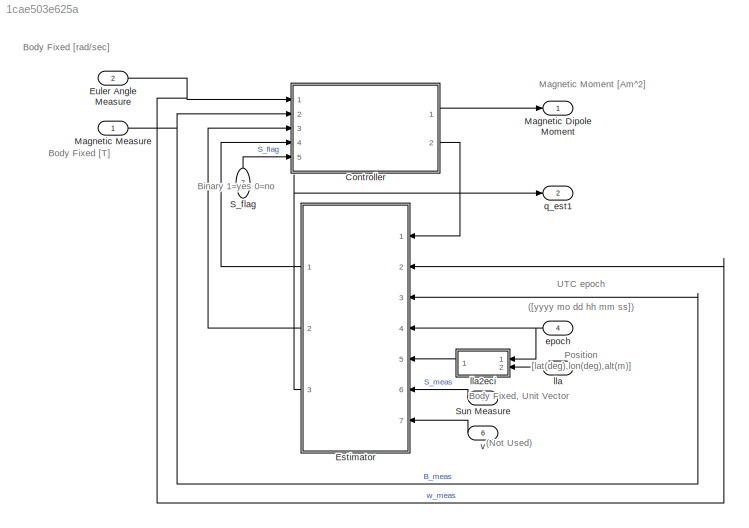
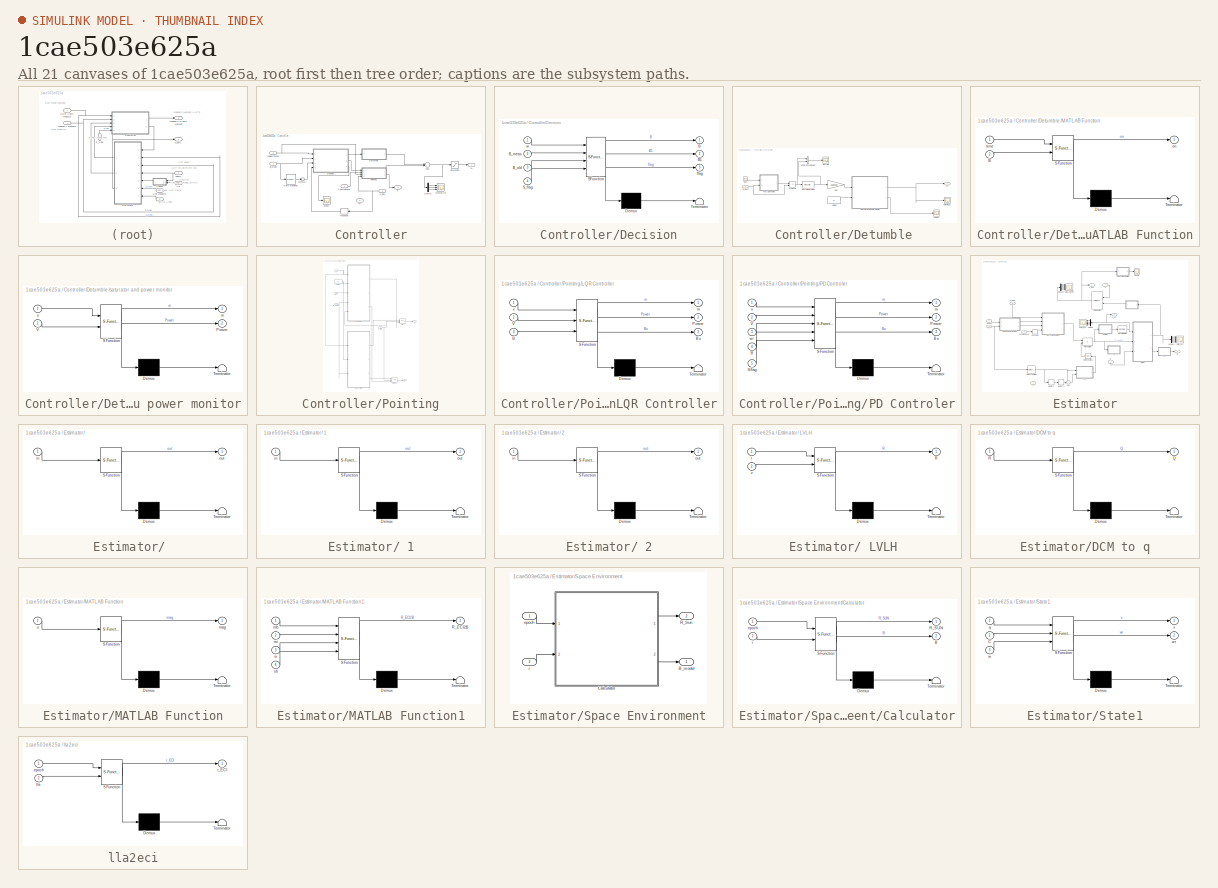
[diagram: thumbnail index - all 21 canvases of the model, root first then tree order]
MODEL slx_1cae503e625a
KIND model
CONFIG AbsTol = auto
CONFIG FixedStep = dt
CONFIG InitFcn = sat_model_init\n
CONFIG MaxStep = auto
CONFIG MinStep = auto
CONFIG RelTol = 1e-6
CONFIG SampleTimeConstraint = Unconstrained
CONFIG Solver = ode4
CONFIG SolverMode = Auto
CONFIG SolverName = ode4
CONFIG StartTime = t0
CONFIG StopTime = tf
BLOCK [SubSystem] Controller
  Ports = [5, 2]
  RequestExecContextInheritance = off
  Variant = off
BLOCK [Inport] Controller/AngleRatesB
  IconDisplay = Port number
BLOCK [Inport] Controller/B_meas
  IconDisplay = Port number
  Port = 2
BLOCK [Inport] Controller/ControlState
  IconDisplay = Port number
  Port = 4
BLOCK [SubSystem] Controller/Decision
  ErrorFcn = Stateflow.Translate.translate
  PermitHierarchicalResolution = ExplicitOnly
  Ports = [4, 3]
  RequestExecContextInheritance = off
  SFBlockType = MATLAB Function
  TreatAsAtomicUnit = on
  Variant = off
BLOCK [Demux] Controller/Decision/ Demux 
  Outputs = 1
  Ports = [1, 1]
BLOCK [S-Function] Controller/Decision/ SFunction 
  EnableBusSupport = on
  FunctionName = sf_sfun
  PortCounts = [4 4]
  Ports = [4, 4]
  SFunctionDeploymentMode = off
  Tag = Stateflow S-Function ADC 7
BLOCK [Terminator] Controller/Decision/ Terminator 
BLOCK [Outport] Controller/Decision/B
  IconDisplay = Port number
BLOCK [Outport] Controller/Decision/B1
  IconDisplay = Port number
  Port = 2
BLOCK [Inport] Controller/Decision/B_meas
  IconDisplay = Port number
  Port = 2
BLOCK [Inport] Controller/Decision/B_old
  IconDisplay = Port number
  Port = 3
BLOCK [Inport] Controller/Decision/S_flag
  IconDisplay = Port number
  Port = 4
BLOCK [Outport] Controller/Decision/flag
  IconDisplay = Port number
  Port = 3
BLOCK [Inport] Controller/Decision/w
  IconDisplay = Port number
BLOCK [Demux] Controller/Demux
  DisplayOption = bar
  Outputs = 3
  Ports = [1, 3]
BLOCK [SubSystem] Controller/Detumble 
  Ports = [1, 1]
  RequestExecContextInheritance = off
  Variant = off
BLOCK [Inport] Controller/Detumble /B_meas 
  IconDisplay = Port number
BLOCK [Clock] Controller/Detumble /Clock
BLOCK [Scope] Controller/Detumble /Discrete 
  Ports = [1]
  ScopeSpecificationString = C++SS(StrPVP('Location','[8, 60, 1916, 1046]'),StrPVP('Open','off'),StrPVP('ZoomMode','xonly'),MxPVP('AxesTitles',24,'struct(''axes1'',''%<SignalLabel>'')'),MxPVP('ScopeGraphics',28,'struct(''FigureColor'',''[0.156862745098039 0.156862745098039 0.156862745098039]'',''AxesColor'',''[0 0 0]'',''AxesTickColor'',''[0.686274509803922 0.686274509803922 0.686274509803922]'',''LineColors'',''[1 1 0;1 0 1;...<+472ch>
BLOCK [Reference] Controller/Detumble /Discrete Derivative  REF=simulink/Discrete/Discrete Derivative
  Ports = [1, 1]
  SourceBlock = simulink/Discrete/Discrete Derivative
  SourceType = Discrete Derivative
BLOCK [Gain] Controller/Detumble /Gain
  Gain = -1000000
  OutDataTypeStr = Inherit: Inherit via internal rule
  ParamDataTypeStr = Inherit: Inherit via internal rule
  SaturateOnIntegerOverflow = off
BLOCK [SubSystem] Controller/Detumble /MATLAB Function
  ErrorFcn = Stateflow.Translate.translate
  PermitHierarchicalResolution = ExplicitOnly
  Ports = [2, 1]
  RequestExecContextInheritance = off
  SFBlockType = MATLAB Function
  TreatAsAtomicUnit = on
  Variant = off
BLOCK [Demux] Controller/Detumble /MATLAB Function/ Demux 
  Outputs = 1
  Ports = [1, 1]
BLOCK [S-Function] Controller/Detumble /MATLAB Function/ SFunction 
  EnableBusSupport = on
  FunctionName = sf_sfun
  PortCounts = [2 2]
  Ports = [2, 2]
  SFunctionDeploymentMode = off
  Tag = Stateflow S-Function ADC 16
BLOCK [Terminator] Controller/Detumble /MATLAB Function/ Terminator 
BLOCK [Inport] Controller/Detumble /MATLAB Function/B
  IconDisplay = Port number
  Port = 2
BLOCK [Outport] Controller/Detumble /MATLAB Function/on
  IconDisplay = Port number
BLOCK [Inport] Controller/Detumble /MATLAB Function/time
  IconDisplay = Port number
BLOCK [Scope] Controller/Detumble /Output M_B
  Ports = [1]
  ScopeSpecificationString = C++SS(StrPVP('Location','[5, 48, 1921, 1039]'),StrPVP('Open','off'),StrPVP('ZoomMode','xonly'),MxPVP('AxesTitles',24,'struct(''axes1'',''%<SignalLabel>'')'),MxPVP('ScopeGraphics',28,'struct(''FigureColor'',''[0.156862745098039 0.156862745098039 0.156862745098039]'',''AxesColor'',''[0 0 0]'',''AxesTickColor'',''[0.686274509803922 0.686274509803922 0.686274509803922]'',''LineColors'',''[1 1 0;1 0 1;...<+371ch>
BLOCK [Scope] Controller/Detumble /Power
  Ports = [1]
  ScopeSpecificationString = C++SS(StrPVP('Location','[5, 48, 1925, 1039]'),StrPVP('Open','off'),StrPVP('ZoomMode','xonly'),MxPVP('AxesTitles',24,'struct(''axes1'',''%<SignalLabel>'')'),MxPVP('ScopeGraphics',28,'struct(''FigureColor'',''[0.156862745098039 0.156862745098039 0.156862745098039]'',''AxesColor'',''[0 0 0]'',''AxesTickColor'',''[0.686274509803922 0.686274509803922 0.686274509803922]'',''LineColors'',''[1 1 0;1 0 1;...<+438ch>
BLOCK [Product] Controller/Detumble /Product4
  InputSameDT = off
  OutDataTypeStr = Inherit: Inherit via internal rule
  Ports = [2, 1]
  RndMeth = Floor
  SaturateOnIntegerOverflow = off
BLOCK [Concatenate] Controller/Detumble /Vector Concatenate
  Ports = [2, 1]
BLOCK [Outport] Controller/Detumble /m
  IconDisplay = Port number
BLOCK [SubSystem] Controller/Detumble /saturator and power monitor
  ErrorFcn = Stateflow.Translate.translate
  PermitHierarchicalResolution = ExplicitOnly
  Ports = [2, 2]
  RequestExecContextInheritance = off
  SFBlockType = MATLAB Function
  TreatAsAtomicUnit = on
  Variant = off
BLOCK [Demux] Controller/Detumble /saturator and power monitor/ Demux 
  Outputs = 1
  Ports = [1, 1]
BLOCK [S-Function] Controller/Detumble /saturator and power monitor/ SFunction 
  EnableBusSupport = on
  FunctionName = sf_sfun
  PortCounts = [2 3]
  Ports = [2, 3]
  SFunctionDeploymentMode = off
  Tag = Stateflow S-Function ADC 12
BLOCK [Terminator] Controller/Detumble /saturator and power monitor/ Terminator 
BLOCK [Outport] Controller/Detumble /saturator and power monitor/Power
  IconDisplay = Port number
  Port = 2
BLOCK [Inport] Controller/Detumble /saturator and power monitor/V
  IconDisplay = Port number
  Port = 2
BLOCK [Outport] Controller/Detumble /saturator and power monitor/m
  IconDisplay = Port number
BLOCK [Inport] Controller/Detumble /saturator and power monitor/u
  IconDisplay = Port number
BLOCK [Constant] Controller/Detumble /voltage
  Value = 5
BLOCK [Outport] Controller/M
  IconDisplay = Port number
BLOCK [Memory] Controller/Memory
  InheritSampleTime = on
BLOCK [Scope] Controller/MometOut
  NumInputPorts = 3
  Ports = [3]
  ScopeSpecificationString = C++SS(StrPVP('Location','[38, 83, 1431, 870]'),StrPVP('Open','off'),MxPVP('AxesTitles',24,'struct(''axes1'',''%<SignalLabel>'',''axes2'',''%<SignalLabel>'',''axes3'',''%<SignalLabel>'')'),MxPVP('ScopeGraphics',28,'struct(''FigureColor'',''[0.156862745098039 0.156862745098039 0.156862745098039]'',''AxesColor'',''[0 0 0]'',''AxesTickColor'',''[0.686274509803922 0.686274509803922 0.686274509803922]''...<+420ch>
BLOCK [SubSystem] Controller/Pointing
  Ports = [4, 2]
  RequestExecContextInheritance = off
  Variant = off
BLOCK [Inport] Controller/Pointing/B_meas
  IconDisplay = Port number
BLOCK [SubSystem] Controller/Pointing/LQR Controller
  ErrorFcn = Stateflow.Translate.translate
  PermitHierarchicalResolution = ExplicitOnly
  Ports = [3, 3]
  RequestExecContextInheritance = off
  SFBlockType = MATLAB Function
  TreatAsAtomicUnit = on
  Variant = off
BLOCK [Demux] Controller/Pointing/LQR Controller/ Demux 
  Outputs = 1
  Ports = [1, 1]
BLOCK [S-Function] Controller/Pointing/LQR Controller/ SFunction 
  EnableBusSupport = on
  FunctionName = sf_sfun
  PortCounts = [3 4]
  Ports = [3, 4]
  SFunctionDeploymentMode = off
  Tag = Stateflow S-Function ADC 13
BLOCK [Terminator] Controller/Pointing/LQR Controller/ Terminator 
BLOCK [Inport] Controller/Pointing/LQR Controller/B
  IconDisplay = Port number
  Port = 3
BLOCK [Outport] Controller/Pointing/LQR Controller/Bu
  IconDisplay = Port number
  Port = 3
BLOCK [Outport] Controller/Pointing/LQR Controller/Power
  IconDisplay = Port number
  Port = 2
BLOCK [Inport] Controller/Pointing/LQR Controller/V
  IconDisplay = Port number
  Port = 2
BLOCK [Outport] Controller/Pointing/LQR Controller/m
  IconDisplay = Port number
BLOCK [Inport] Controller/Pointing/LQR Controller/x
  IconDisplay = Port number
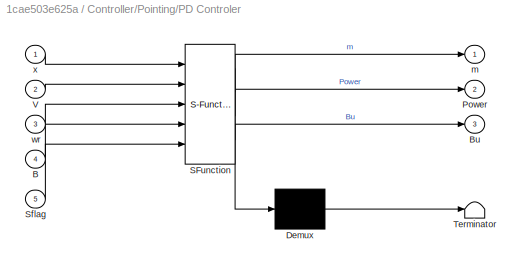
BLOCK [SubSystem] Controller/Pointing/PD Controler
  ErrorFcn = Stateflow.Translate.translate
  PermitHierarchicalResolution = ExplicitOnly
  Ports = [5, 3]
  RequestExecContextInheritance = off
  SFBlockType = MATLAB Function
  TreatAsAtomicUnit = on
  Variant = off
BLOCK [Demux] Controller/Pointing/PD Controler/ Demux 
  Outputs = 1
  Ports = [1, 1]
BLOCK [S-Function] Controller/Pointing/PD Controler/ SFunction 
  EnableBusSupport = on
  FunctionName = sf_sfun
  PortCounts = [5 4]
  Ports = [5, 4]
  SFunctionDeploymentMode = off
  Tag = Stateflow S-Function ADC 22
BLOCK [Terminator] Controller/Pointing/PD Controler/ Terminator 
BLOCK [Inport] Controller/Pointing/PD Controler/B
  IconDisplay = Port number
  Port = 4
BLOCK [Outport] Controller/Pointing/PD Controler/Bu
  IconDisplay = Port number
  Port = 3
BLOCK [Outport] Controller/Pointing/PD Controler/Power
  IconDisplay = Port number
  Port = 2
BLOCK [Inport] Controller/Pointing/PD Controler/Sflag
  IconDisplay = Port number
  Port = 5
BLOCK [Inport] Controller/Pointing/PD Controler/V
  IconDisplay = Port number
  Port = 2
BLOCK [Outport] Controller/Pointing/PD Controler/m
  IconDisplay = Port number
BLOCK [Inport] Controller/Pointing/PD Controler/wr
  IconDisplay = Port number
  Port = 3
BLOCK [Inport] Controller/Pointing/PD Controler/x
  IconDisplay = Port number
BLOCK [Inport] Controller/Pointing/S_flag
  IconDisplay = Port number
  Port = 4
BLOCK [Switch] Controller/Pointing/Switch
  Criteria = u2 > Threshold
  InputSameDT = off
  SaturateOnIntegerOverflow = off
BLOCK [Switch] Controller/Pointing/Switch2
  Criteria = u2 > Threshold
  InputSameDT = off
  SaturateOnIntegerOverflow = off
BLOCK [Outport] Controller/Pointing/m
  IconDisplay = Port number
BLOCK [Outport] Controller/Pointing/u
  IconDisplay = Port number
  Port = 2
BLOCK [Constant] Controller/Pointing/voltage
  Value = 5
BLOCK [Inport] Controller/Pointing/wr
  IconDisplay = Port number
  Port = 3
BLOCK [Inport] Controller/Pointing/x
  IconDisplay = Port number
  Port = 2
BLOCK [RateTransition] Controller/Rate Transition
  OutPortSampleTime = .1
  OutPortSampleTimeOpt = Inherit
BLOCK [Reshape] Controller/Reshape
  OutputDimensionality = Customize
  Ports = [1, 1]
BLOCK [Inport] Controller/S_flag
  IconDisplay = Port number
  Port = 5
BLOCK [Saturate] Controller/Saturation
  Commented = through
  InputPortMap = u0
  LowerLimit = -1
  Ports = [1, 1]
  UpperLimit = 1
BLOCK [Scope] Controller/Scope
  Ports = [1]
  ScopeSpecificationString = C++SS(StrPVP('Location','[599, 395, 1433, 890]'),StrPVP('Open','off'),MxPVP('AxesTitles',24,'struct(''axes1'',''%<SignalLabel>'')'),MxPVP('ScopeGraphics',28,'struct(''FigureColor'',''[0.156862745098039 0.156862745098039 0.156862745098039]'',''AxesColor'',''[0 0 0]'',''AxesTickColor'',''[0.686274509803922 0.686274509803922 0.686274509803922]'',''LineColors'',''[1 1 0;1 0 1;0 1 1;1 0 0;0 1 0;0 0 1]'...<+332ch>
BLOCK [Sum] Controller/Sum
  IconShape = round
  InputSameDT = off
  Inputs = |++
  OutDataTypeStr = Inherit: Inherit via internal rule
  Ports = [2, 1]
  SaturateOnIntegerOverflow = off
BLOCK [Outport] Controller/u
  IconDisplay = Port number
  Port = 2
BLOCK [Inport] Controller/wr
  IconDisplay = Port number
  Port = 3
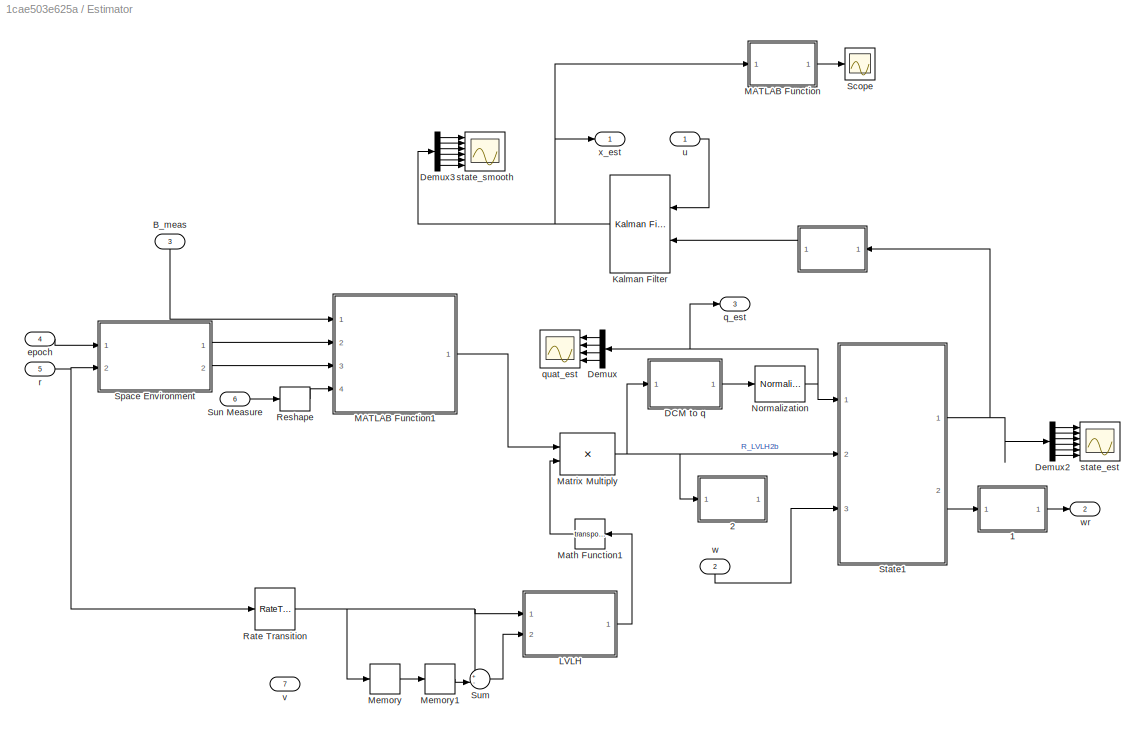
BLOCK [SubSystem] Estimator
  Ports = [7, 3]
  RequestExecContextInheritance = off
  Variant = off
BLOCK [SubSystem] Estimator/ 
  ErrorFcn = Stateflow.Translate.translate
  PermitHierarchicalResolution = ExplicitOnly
  Ports = [1, 1]
  RequestExecContextInheritance = off
  SFBlockType = MATLAB Function
  TreatAsAtomicUnit = on
  Variant = off
BLOCK [Demux] Estimator/ / Demux 
  Outputs = 1
  Ports = [1, 1]
BLOCK [S-Function] Estimator/ / SFunction 
  EnableBusSupport = on
  FunctionName = sf_sfun
  PortCounts = [1 2]
  Ports = [1, 2]
  SFunctionDeploymentMode = off
  Tag = Stateflow S-Function ADC 31
BLOCK [Terminator] Estimator/ / Terminator 
BLOCK [Inport] Estimator/ /in
  IconDisplay = Port number
BLOCK [Outport] Estimator/ /out
  IconDisplay = Port number
BLOCK [SubSystem] Estimator/ 1
  ErrorFcn = Stateflow.Translate.translate
  PermitHierarchicalResolution = ExplicitOnly
  Ports = [1, 1]
  RequestExecContextInheritance = off
  SFBlockType = MATLAB Function
  TreatAsAtomicUnit = on
  Variant = off
BLOCK [Demux] Estimator/ 1/ Demux 
  Outputs = 1
  Ports = [1, 1]
BLOCK [S-Function] Estimator/ 1/ SFunction 
  EnableBusSupport = on
  FunctionName = sf_sfun
  PortCounts = [1 2]
  Ports = [1, 2]
  SFunctionDeploymentMode = off
  Tag = Stateflow S-Function ADC 34
BLOCK [Terminator] Estimator/ 1/ Terminator 
BLOCK [Inport] Estimator/ 1/in
  IconDisplay = Port number
BLOCK [Outport] Estimator/ 1/out
  IconDisplay = Port number
BLOCK [SubSystem] Estimator/ 2
  ErrorFcn = Stateflow.Translate.translate
  PermitHierarchicalResolution = ExplicitOnly
  Ports = [1, 1]
  RequestExecContextInheritance = off
  SFBlockType = MATLAB Function
  TreatAsAtomicUnit = on
  Variant = off
BLOCK [Demux] Estimator/ 2/ Demux 
  Outputs = 1
  Ports = [1, 1]
BLOCK [S-Function] Estimator/ 2/ SFunction 
  EnableBusSupport = on
  FunctionName = sf_sfun
  PortCounts = [1 2]
  Ports = [1, 2]
  SFunctionDeploymentMode = off
  Tag = Stateflow S-Function ADC 36
BLOCK [Terminator] Estimator/ 2/ Terminator 
BLOCK [Inport] Estimator/ 2/in
  IconDisplay = Port number
BLOCK [Outport] Estimator/ 2/out
  IconDisplay = Port number
BLOCK [SubSystem] Estimator/ LVLH 
  ErrorFcn = Stateflow.Translate.translate
  PermitHierarchicalResolution = ExplicitOnly
  Ports = [2, 1]
  RequestExecContextInheritance = off
  SFBlockType = MATLAB Function
  TreatAsAtomicUnit = on
  Variant = off
BLOCK [Demux] Estimator/ LVLH / Demux 
  Outputs = 1
  Ports = [1, 1]
BLOCK [S-Function] Estimator/ LVLH / SFunction 
  EnableBusSupport = on
  FunctionName = sf_sfun
  PortCounts = [2 2]
  Ports = [2, 2]
  SFunctionDeploymentMode = off
  Tag = Stateflow S-Function ADC 24
BLOCK [Terminator] Estimator/ LVLH / Terminator 
BLOCK [Outport] Estimator/ LVLH /R
  IconDisplay = Port number
BLOCK [Inport] Estimator/ LVLH /r
  IconDisplay = Port number
BLOCK [Inport] Estimator/ LVLH /v
  IconDisplay = Port number
  Port = 2
BLOCK [Inport] Estimator/B_meas
  IconDisplay = Port number
  Port = 3
BLOCK [SubSystem] Estimator/DCM to q
  ErrorFcn = Stateflow.Translate.translate
  PermitHierarchicalResolution = ExplicitOnly
  Ports = [1, 1]
  RequestExecContextInheritance = off
  SFBlockType = MATLAB Function
  TreatAsAtomicUnit = on
  Variant = off
BLOCK [Demux] Estimator/DCM to q/ Demux 
  Outputs = 1
  Ports = [1, 1]
BLOCK [S-Function] Estimator/DCM to q/ SFunction 
  EnableBusSupport = on
  FunctionName = sf_sfun
  PortCounts = [1 2]
  Ports = [1, 2]
  SFunctionDeploymentMode = off
  Tag = Stateflow S-Function ADC 18
BLOCK [Terminator] Estimator/DCM to q/ Terminator 
BLOCK [Outport] Estimator/DCM to q/Q
  IconDisplay = Port number
BLOCK [Inport] Estimator/DCM to q/R
  IconDisplay = Port number
BLOCK [Demux] Estimator/Demux
  DisplayOption = bar
  Ports = [1, 4]
BLOCK [Demux] Estimator/Demux2
  DisplayOption = bar
  Outputs = 6
  Ports = [1, 6]
BLOCK [Demux] Estimator/Demux3
  DisplayOption = bar
  Outputs = 6
  Ports = [1, 6]
BLOCK [Reference] Estimator/Kalman Filter  REF=ctrlSharedLib/Kalman Filter
  Ports = [2, 1]
  SourceBlock = ctrlSharedLib/Kalman Filter
  SourceType = ctrlKalmanFilter
BLOCK [SubSystem] Estimator/MATLAB Function
  ErrorFcn = Stateflow.Translate.translate
  PermitHierarchicalResolution = ExplicitOnly
  Ports = [1, 1]
  RequestExecContextInheritance = off
  SFBlockType = MATLAB Function
  TreatAsAtomicUnit = on
  Variant = off
BLOCK [Demux] Estimator/MATLAB Function/ Demux 
  Outputs = 1
  Ports = [1, 1]
BLOCK [S-Function] Estimator/MATLAB Function/ SFunction 
  EnableBusSupport = on
  FunctionName = sf_sfun
  PortCounts = [1 2]
  Ports = [1, 2]
  SFunctionDeploymentMode = off
  Tag = Stateflow S-Function ADC 29
BLOCK [Terminator] Estimator/MATLAB Function/ Terminator 
BLOCK [Outport] Estimator/MATLAB Function/mag
  IconDisplay = Port number
BLOCK [Inport] Estimator/MATLAB Function/u
  IconDisplay = Port number
BLOCK [SubSystem] Estimator/MATLAB Function1
  ErrorFcn = Stateflow.Translate.translate
  PermitHierarchicalResolution = ExplicitOnly
  Ports = [4, 1]
  RequestExecContextInheritance = off
  SFBlockType = MATLAB Function
  TreatAsAtomicUnit = on
  Variant = off
BLOCK [Demux] Estimator/MATLAB Function1/ Demux 
  Outputs = 1
  Ports = [1, 1]
BLOCK [S-Function] Estimator/MATLAB Function1/ SFunction 
  EnableBusSupport = on
  FunctionName = sf_sfun
  PortCounts = [4 2]
  Ports = [4, 2]
  SFunctionDeploymentMode = off
  Tag = Stateflow S-Function ADC 30
BLOCK [Terminator] Estimator/MATLAB Function1/ Terminator 
BLOCK [Outport] Estimator/MATLAB Function1/R_ECI2B
  IconDisplay = Port number
BLOCK [Inport] Estimator/MATLAB Function1/mb
  IconDisplay = Port number
BLOCK [Inport] Estimator/MATLAB Function1/mi
  IconDisplay = Port number
  Port = 2
BLOCK [Inport] Estimator/MATLAB Function1/sb
  IconDisplay = Port number
  Port = 4
BLOCK [Inport] Estimator/MATLAB Function1/si
  IconDisplay = Port number
  Port = 3
BLOCK [Math] Estimator/Math Function1
  Operator = transpose
  Ports = [1, 1]
BLOCK [Product] Estimator/Matrix Multiply
  InputSameDT = off
  Multiplication = Matrix(*)
  OutDataTypeStr = Inherit: Inherit via internal rule
  Ports = [2, 1]
  RndMeth = Floor
  SaturateOnIntegerOverflow = off
BLOCK [Memory] Estimator/Memory
BLOCK [Memory] Estimator/Memory1
BLOCK [Reference] Estimator/Normalization  REF=dspmathops/Normalization
  Ports = [1, 1]
  SourceBlock = dspmathops/Normalization
  SourceType = Normalization
BLOCK [RateTransition] Estimator/Rate Transition
  OutPortSampleTime = 1
  OutPortSampleTimeOpt = Inherit
BLOCK [Reshape] Estimator/Reshape
  OutputDimensionality = Customize
  OutputDimensions = [3,1]
  Ports = [1, 1]
BLOCK [Scope] Estimator/Scope
  Ports = [1]
  ScopeSpecificationString = C++SS(StrPVP('Location','[403, 305, 1377, 1133]'),StrPVP('Open','off'),MxPVP('AxesTitles',24,'struct(''axes1'',''%<SignalLabel>'')'),MxPVP('ScopeGraphics',28,'struct(''FigureColor'',''[0.156862745098039 0.156862745098039 0.156862745098039]'',''AxesColor'',''[0 0 0]'',''AxesTickColor'',''[0.686274509803922 0.686274509803922 0.686274509803922]'',''LineColors'',''[1 1 0;1 0 1;0 1 1;1 0 0;0 1 0;0 0 1]...<+339ch>
BLOCK [SubSystem] Estimator/Space Environment
  Ports = [2, 2]
  RequestExecContextInheritance = off
  Variant = off
BLOCK [Outport] Estimator/Space Environment/B_model
  IconDisplay = Port number
BLOCK [SubSystem] Estimator/Space Environment/Calculator
  ErrorFcn = Stateflow.Translate.translate
  PermitHierarchicalResolution = ExplicitOnly
  Ports = [2, 2]
  RequestExecContextInheritance = off
  SFBlockType = MATLAB Function
  TreatAsAtomicUnit = on
  Variant = off
BLOCK [Demux] Estimator/Space Environment/Calculator/ Demux 
  Outputs = 1
  Ports = [1, 1]
BLOCK [S-Function] Estimator/Space Environment/Calculator/ SFunction 
  EnableBusSupport = on
  FunctionName = sf_sfun
  PortCounts = [2 3]
  Ports = [2, 3]
  SFunctionDeploymentMode = off
  Tag = Stateflow S-Function ADC 15
BLOCK [Terminator] Estimator/Space Environment/Calculator/ Terminator 
BLOCK [Outport] Estimator/Space Environment/Calculator/B
  IconDisplay = Port number
  Port = 2
BLOCK [Outport] Estimator/Space Environment/Calculator/R_SUN
  IconDisplay = Port number
BLOCK [Inport] Estimator/Space Environment/Calculator/epoch
  IconDisplay = Port number
BLOCK [Inport] Estimator/Space Environment/Calculator/r
  IconDisplay = Port number
  Port = 2
BLOCK [Outport] Estimator/Space Environment/R_Sun
  IconDisplay = Port number
  Port = 2
BLOCK [Inport] Estimator/Space Environment/epoch
  IconDisplay = Port number
BLOCK [Inport] Estimator/Space Environment/r
  IconDisplay = Port number
  Port = 2
BLOCK [SubSystem] Estimator/State1
  ErrorFcn = Stateflow.Translate.translate
  PermitHierarchicalResolution = ExplicitOnly
  Ports = [3, 2]
  RequestExecContextInheritance = off
  SFBlockType = MATLAB Function
  TreatAsAtomicUnit = on
  Variant = off
BLOCK [Demux] Estimator/State1/ Demux 
  Outputs = 1
  Ports = [1, 1]
BLOCK [S-Function] Estimator/State1/ SFunction 
  EnableBusSupport = on
  FunctionName = sf_sfun
  PortCounts = [3 3]
  Ports = [3, 3]
  SFunctionDeploymentMode = off
  Tag = Stateflow S-Function ADC 23
BLOCK [Terminator] Estimator/State1/ Terminator 
BLOCK [Inport] Estimator/State1/C
  IconDisplay = Port number
  Port = 2
BLOCK [Inport] Estimator/State1/q
  IconDisplay = Port number
BLOCK [Inport] Estimator/State1/w
  IconDisplay = Port number
  Port = 3
BLOCK [Outport] Estimator/State1/wr
  IconDisplay = Port number
  Port = 2
BLOCK [Outport] Estimator/State1/x
  IconDisplay = Port number
BLOCK [Sum] Estimator/Sum
  IconShape = round
  InputSameDT = off
  Inputs = +-|
  OutDataTypeStr = Inherit: Inherit via internal rule
  Ports = [2, 1]
  SaturateOnIntegerOverflow = off
BLOCK [Inport] Estimator/Sun Measure
  IconDisplay = Port number
  Port = 6
BLOCK [Inport] Estimator/epoch
  IconDisplay = Port number
  Port = 4
BLOCK [Outport] Estimator/q_est
  IconDisplay = Port number
  Port = 3
BLOCK [Scope] Estimator/quat_est
  NumInputPorts = 4
  Ports = [4]
  ScopeSpecificationString = Simulink.scopes.TimeScopeBlockCfg('CurrentConfiguration', extmgr.ConfigurationSet(extmgr.Configuration('Core','General UI',true,'FigureColor',[0.156862745098039 0.156862745098039 0.156862745098039]),extmgr.Configuration('Core','Source UI',true),extmgr.Configuration('Sources','WiredSimulink',true,'DataLogging',true,'DataLoggingVariableName','quat_est','DataLoggingSaveFormat','Structure','DataLoggin...<+6442ch>
BLOCK [Inport] Estimator/r
  IconDisplay = Port number
  Port = 5
  SamplingMode = Sample based
BLOCK [Scope] Estimator/state_est
  NumInputPorts = 6
  Ports = [6]
  ScopeSpecificationString = C++SS(StrPVP('Location','[741, 53, 1717, 1173]'),StrPVP('Open','off'),MxPVP('AxesTitles',24,'struct(''axes1'',''%<SignalLabel>'',''axes2'',''%<SignalLabel>'',''axes3'',''%<SignalLabel>'',''axes4'',''%<SignalLabel>'',''axes5'',''%<SignalLabel>'',''axes6'',''%<SignalLabel>'')'),MxPVP('ScopeGraphics',28,'struct(''FigureColor'',''[0.156862745098039 0.156862745098039 0.156862745098039]'',''AxesColor'',...<+635ch>
BLOCK [Scope] Estimator/state_smooth
  NumInputPorts = 6
  Ports = [6]
  ScopeSpecificationString = C++SS(StrPVP('Location','[17, 69, 1009, 1095]'),StrPVP('Open','off'),MxPVP('AxesTitles',24,'struct(''axes1'',''%<SignalLabel>'',''axes2'',''%<SignalLabel>'',''axes3'',''%<SignalLabel>'',''axes4'',''%<SignalLabel>'',''axes5'',''%<SignalLabel>'',''axes6'',''%<SignalLabel>'')'),MxPVP('ScopeGraphics',28,'struct(''FigureColor'',''[0.156862745098039 0.156862745098039 0.156862745098039]'',''AxesColor'','...<+576ch>
BLOCK [Inport] Estimator/u
  IconDisplay = Port number
BLOCK [Inport] Estimator/v 
  IconDisplay = Port number
  Port = 7
BLOCK [Inport] Estimator/w
  IconDisplay = Port number
  Port = 2
BLOCK [Outport] Estimator/wr
  IconDisplay = Port number
  Port = 2
BLOCK [Outport] Estimator/x_est
  IconDisplay = Port number
BLOCK [Inport] Euler Angle Measure
  IconDisplay = Port number
  OutDataTypeStr = double
  Port = 2
  PortDimensions = 3
  SampleTime = 0
  SamplingMode = Sample based
  SignalType = real
BLOCK [Outport] Magnetic Dipole Moment
  IconDisplay = Port number
  OutDataTypeStr = double
  PortDimensions = 3
  SampleTime = 0
  SamplingMode = Sample based
  SignalType = real
BLOCK [Inport] Magnetic Measure
  IconDisplay = Port number
  OutDataTypeStr = double
  PortDimensions = 3
  SamplingMode = Sample based
  SignalType = real
BLOCK [Inport] S_flag
  IconDisplay = Port number
  OutDataTypeStr = double
  Port = 7
  PortDimensions = 1
  SampleTime = 0
  SamplingMode = Sample based
  SignalType = real
BLOCK [Inport] Sun Measure
  IconDisplay = Port number
  OutDataTypeStr = double
  Port = 3
  PortDimensions = 3
  SampleTime = 0
  SamplingMode = Sample based
  SignalType = real
BLOCK [Inport] epoch
  IconDisplay = Port number
  OutDataTypeStr = double
  Port = 4
  PortDimensions = 6
  SamplingMode = Sample based
  SignalType = real
BLOCK [Inport] lla
  IconDisplay = Port number
  OutDataTypeStr = double
  Port = 5
  PortDimensions = 3
  SampleTime = 0
  SamplingMode = Sample based
  SignalType = real
BLOCK [SubSystem] lla2eci
  ErrorFcn = Stateflow.Translate.translate
  PermitHierarchicalResolution = ExplicitOnly
  Ports = [2, 1]
  RequestExecContextInheritance = off
  SFBlockType = MATLAB Function
  TreatAsAtomicUnit = on
  Variant = off
BLOCK [Demux] lla2eci/ Demux 
  Outputs = 1
  Ports = [1, 1]
BLOCK [S-Function] lla2eci/ SFunction 
  EnableBusSupport = on
  FunctionName = sf_sfun
  PortCounts = [2 2]
  Ports = [2, 2]
  SFunctionDeploymentMode = off
  Tag = Stateflow S-Function ADC 2
BLOCK [Terminator] lla2eci/ Terminator 
BLOCK [Inport] lla2eci/epoch
  IconDisplay = Port number
BLOCK [Inport] lla2eci/lla
  IconDisplay = Port number
  Port = 2
BLOCK [Outport] lla2eci/r_ECI
  IconDisplay = Port number
BLOCK [Outport] q_est1
  IconDisplay = Port number
  Port = 2
BLOCK [Inport] v 
  IconDisplay = Port number
  OutDataTypeStr = double
  Port = 6
  PortDimensions = 3
  SampleTime = 0
  SamplingMode = Sample based
  SignalType = real
ANNOTATION (root): (Not Used)
ANNOTATION (root): Body Fixed [T]
ANNOTATION (root): Body Fixed, Unit Vector
ANNOTATION (root): Position [lat(deg),lon(deg),alt(m)]
ANNOTATION (root): UTC epoch ([yyyy mo dd hh mm ss])
ANNOTATION (root): Binary 1=yes 0=no
ANNOTATION (root): Body Fixed [rad/sec]
ANNOTATION (root): Magnetic Moment [Am^2]
NET Controller/AngleRatesB:1 -> Controller/Decision:1, Controller/Pointing:3
NET Controller/B_meas:1 -> Controller/Decision:2, Controller/Rate Transition:1
LINE Controller/ControlState:1 -> Controller/Pointing:2
LINE Controller/Decision:1 -> Controller/Detumble :1
LINE Controller/Decision:2 -> Controller/Pointing:1
LINE Controller/Decision:3 -> Controller/Scope:1
LINE Controller/Demux:1 -> Controller/MometOut:1
LINE Controller/Demux:2 -> Controller/MometOut:2
LINE Controller/Demux:3 -> Controller/MometOut:3
NET Controller/Detumble /B_meas :1 -> Controller/Detumble /MATLAB Function:2, Controller/Detumble /Product4:2
LINE Controller/Detumble /Clock:1 -> Controller/Detumble /MATLAB Function:1
NET Controller/Detumble /Discrete Derivative:1 -> Controller/Detumble /Gain:1, Controller/Detumble /Vector Concatenate:2
LINE Controller/Detumble /Gain:1 -> Controller/Detumble /saturator and power monitor:1
LINE Controller/Detumble /MATLAB Function:1 -> Controller/Detumble /Product4:1
NET Controller/Detumble /Product4:1 -> Controller/Detumble /Discrete Derivative:1, Controller/Detumble /Vector Concatenate:1
LINE Controller/Detumble /Vector Concatenate:1 -> Controller/Detumble /Discrete :1
NET Controller/Detumble /saturator and power monitor:1 -> Controller/Detumble /Output M_B:1, Controller/Detumble /m:1
LINE Controller/Detumble /saturator and power monitor:2 -> Controller/Detumble /Power:1
LINE Controller/Detumble /voltage:1 -> Controller/Detumble /saturator and power monitor:2
LINE Controller/Detumble :1 -> Controller/Sum:1
LINE Controller/Memory:1 -> Controller/Decision:3
NET Controller/Pointing/B_meas:1 -> Controller/Pointing/LQR Controller:3, Controller/Pointing/PD Controler:4
LINE Controller/Pointing/LQR Controller:1 -> Controller/Pointing/Switch:1
LINE Controller/Pointing/LQR Controller:3 -> Controller/Pointing/Switch2:1
LINE Controller/Pointing/PD Controler:1 -> Controller/Pointing/Switch:3
LINE Controller/Pointing/PD Controler:3 -> Controller/Pointing/Switch2:3
NET Controller/Pointing/S_flag:1 -> Controller/Pointing/PD Controler:5, Controller/Pointing/Switch2:2, Controller/Pointing/Switch:2
LINE Controller/Pointing/Switch2:1 -> Controller/Pointing/u:1
LINE Controller/Pointing/Switch:1 -> Controller/Pointing/m:1
NET Controller/Pointing/voltage:1 -> Controller/Pointing/LQR Controller:2, Controller/Pointing/PD Controler:2
LINE Controller/Pointing/wr:1 -> Controller/Pointing/PD Controler:3
NET Controller/Pointing/x:1 -> Controller/Pointing/LQR Controller:1, Controller/Pointing/PD Controler:1
LINE Controller/Pointing:1 -> Controller/Sum:2
LINE Controller/Pointing:2 -> Controller/u:1
LINE Controller/Rate Transition:1 -> Controller/Memory:1
LINE Controller/Reshape:1 -> Controller/Decision:4
NET Controller/S_flag:1 -> Controller/Pointing:4, Controller/Reshape:1
LINE Controller/Saturation:1 -> Controller/M:1
NET Controller/Sum:1 -> Controller/Demux:1, Controller/Saturation:1
LINE Controller:1 -> Magnetic Dipole Moment:1
LINE Controller:2 -> Estimator:1
LINE Estimator/ 1:1 -> Estimator/wr:1
LINE Estimator/ :1 -> Estimator/Kalman Filter:2
LINE Estimator/ LVLH :1 -> Estimator/Math Function1:1
LINE Estimator/B_meas:1 -> Estimator/MATLAB Function1:1
LINE Estimator/DCM to q:1 -> Estimator/Normalization:1
LINE Estimator/Demux2:1 -> Estimator/state_est:1
LINE Estimator/Demux2:2 -> Estimator/state_est:2
LINE Estimator/Demux2:3 -> Estimator/state_est:3
LINE Estimator/Demux2:4 -> Estimator/state_est:4
LINE Estimator/Demux2:5 -> Estimator/state_est:5
LINE Estimator/Demux2:6 -> Estimator/state_est:6
LINE Estimator/Demux3:1 -> Estimator/state_smooth:1
LINE Estimator/Demux3:2 -> Estimator/state_smooth:2
LINE Estimator/Demux3:3 -> Estimator/state_smooth:3
LINE Estimator/Demux3:4 -> Estimator/state_smooth:4
LINE Estimator/Demux3:5 -> Estimator/state_smooth:5
LINE Estimator/Demux3:6 -> Estimator/state_smooth:6
LINE Estimator/Demux:1 -> Estimator/quat_est:1
LINE Estimator/Demux:2 -> Estimator/quat_est:2
LINE Estimator/Demux:3 -> Estimator/quat_est:3
LINE Estimator/Demux:4 -> Estimator/quat_est:4
NET Estimator/Kalman Filter:1 -> Estimator/Demux3:1, Estimator/MATLAB Function:1, Estimator/x_est:1
LINE Estimator/MATLAB Function1:1 -> Estimator/Matrix Multiply:1
LINE Estimator/MATLAB Function:1 -> Estimator/Scope:1
LINE Estimator/Math Function1:1 -> Estimator/Matrix Multiply:2
NET Estimator/Matrix Multiply:1 -> Estimator/ 2:1, Estimator/DCM to q:1, Estimator/State1:2
LINE Estimator/Memory1:1 -> Estimator/Sum:2
LINE Estimator/Memory:1 -> Estimator/Memory1:1
NET Estimator/Normalization:1 -> Estimator/Demux:1, Estimator/State1:1, Estimator/q_est:1
NET Estimator/Rate Transition:1 -> Estimator/ LVLH :1, Estimator/Memory:1, Estimator/Sum:1
LINE Estimator/Reshape:1 -> Estimator/MATLAB Function1:4
LINE Estimator/Space Environment/Calculator:1 -> Estimator/Space Environment/R_Sun:1
LINE Estimator/Space Environment/Calculator:2 -> Estimator/Space Environment/B_model:1
LINE Estimator/Space Environment/epoch:1 -> Estimator/Space Environment/Calculator:1
LINE Estimator/Space Environment/r:1 -> Estimator/Space Environment/Calculator:2
LINE Estimator/Space Environment:1 -> Estimator/MATLAB Function1:2
LINE Estimator/Space Environment:2 -> Estimator/MATLAB Function1:3
NET Estimator/State1:1 -> Estimator/ :1, Estimator/Demux2:1
LINE Estimator/State1:2 -> Estimator/ 1:1
LINE Estimator/Sum:1 -> Estimator/ LVLH :2
LINE Estimator/Sun Measure:1 -> Estimator/Reshape:1
LINE Estimator/epoch:1 -> Estimator/Space Environment:1
NET Estimator/r:1 -> Estimator/Rate Transition:1, Estimator/Space Environment:2
LINE Estimator/u:1 -> Estimator/Kalman Filter:1
LINE Estimator/w:1 -> Estimator/State1:3
LINE Estimator:1 -> Controller:4
LINE Estimator:2 -> Controller:3
LINE Estimator:3 -> q_est1:1
NET Euler Angle Measure:1 -> Controller:1, Estimator:2
NET Magnetic Measure:1 -> Controller:2, Estimator:3
LINE S_flag:1 -> Controller:5
LINE Sun Measure:1 -> Estimator:6
NET epoch:1 -> Estimator:4, lla2eci:1
LINE lla2eci:1 -> Estimator:5
LINE lla:1 -> lla2eci:2
LINE v :1 -> Estimator:7
note: NET lines group one-source signal fan-out (src -> all destinations, sorted); 1:1 wires keep LINE
CHART lla2eci states=1 transitions=1
  STATE_LABEL 'eML_blk_kernel()'
  STATE_LABEL 'SCRIPT:\nfunction r_ECI  =lla2eci(epoch,lla)\n% lla = [lat(deg),lon(deg),alt(m)]\nlat=lla(1);\nlon=lla(2);\nalt=lla(3);\n\nRe = 6378.1363e3;\n%Compute the Julian Date (JD) from a Gregorian Date (UT1) input\nyr=epoch(1);  %(year)\nmo=epoch(2);  %(month)\nd=epoch(3);  %(day)\nh=epoch(4);  %(hr)\nmin=epoch(5);  %(min)\ns=epoch(6);  %(sec)\nJD=367*yr-floor(7/4*(yr+floor((mo+9)/12)))+floor(275*mo/9)+d+1721013.5+(((s/...<+1027ch>'
CHART Controller/Decision states=1 transitions=1
  STATE_LABEL 'eML_blk_kernel()'
  STATE_LABEL 'SCRIPT:\nfunction [B,B1,flag] = det_or_point(w,B_meas,B_old,S_flag)\n%B is output to Detumbler, B1 is output to Pointing Control\nflag=0;\n% if (abs(norm(w)) >= 0.01) || (norm(B_meas-B_old)/norm(B_meas)>0.05 )\n%     B = B_meas;\n%     B1 = [0;0;0];\n% else\nB = [0;0;0];\nB1 = B_meas;\nflag=1;\n% end\n\nend'
CHART Controller/Detumble
/saturator and power monitor states=1 transitions=1
  STATE_LABEL 'eML_blk_kernel()'
  STATE_LABEL 'SCRIPT:\nfunction [m,Power] = coil(u,V)\n\n\nI_max=[.08;.08;.08];\nm_max = [.2;.2;.2];\n\nm=[0;0;0];\nm_raw=u;\n\n%Saturator\nif abs(m_raw(1))>m_max(1)\n    m(1)=m_max(1)*sign(m_raw(1));\nelse\n    m(1)=m_raw(1);\nend\n\nif abs(m_raw(2))>m_max(2)\n    m(2)=m_max(2)*sign(m_raw(2));\nelse\n    m(2)=m_raw(2);\nend\n\nif abs(m_raw(3))>m_max(3)\n    m(3)=m_max(3)*sign(m_raw(3));\nelse\n    m(3)=m_raw(3);\nend\n%Power Monitor\nI_to...<+107ch>'
CHART Controller/Pointing/LQR Controller states=1 transitions=1
  STATE_LABEL 'eML_blk_kernel()'
  STATE_LABEL 'SCRIPT:\nfunction [m,Power,Bu] = coil(x,V,B)\n%maximum magnetic moment\nI_max=[.08;.08;.08];\nm_max=[.2;.2;.2];\nm=[0;0;0];\n\n% Main Controller\nK=[1015.81637123020,8.04611892244142e-14,-453.958044168676,384003.046505704,1.44940442674718e-11,-187075.587093135;7.60272150440681e-14,1186.23970592244,-2.35978593865247e-13,1.08705332006039e-11,448289.486640409,9.49012273578315e-11;453.958044168675,-1.67413778...<+698ch>'
CHART Estimator/Space Environment/Calculator states=1 transitions=1
  STATE_LABEL 'eML_blk_kernel()'
  STATE_LABEL 'SCRIPT:\nfunction [R_SUN,B] =space_env(epoch,r)\n\nRe = 6378.1363e3;\n%Compute the Julian Date (JD) from a Gregorian Date (UT1) input\nyr=epoch(1);  %(year)\nmo=epoch(2);  %(month)\nd=epoch(3);  %(day)\nh=epoch(4);  %(hr)\nmin=epoch(5);  %(min)\ns=epoch(6);  %(sec)\nJD=367*yr-floor(7/4*(yr+floor((mo+9)/12)))+floor(275*mo/9)+d+1721013.5+(((s/60+min)/60)+h)/24;  %(JD)\n\n%Compute the Universal Time (UT) from JD\n...<+2906ch>'
CHART Controller/Detumble
/MATLAB Function states=1 transitions=1
  STATE_LABEL 'eML_blk_kernel()'
  STATE_LABEL 'SCRIPT:\nfunction on = clock_timer(time,B)\npersistent counter\npersistent times\n\ntime_diff=1;\nif isempty(times)\n    times = zeros(1,1000000);\nend\nif isempty(counter)\n    counter = 1;\nend\nif(norm(B)>0)\n    times(1,counter)=time;\n    if(counter>1)\n        time_diff=times(1,counter)-times(1,(counter-1));\n    end\n    if(time_diff>=1)\n        on=0;\n    else\n        on=1;\n        \n%         counter=1;\n   ...<+163ch>'
CHART Estimator/DCM to q states=1 transitions=1
  STATE_LABEL 'eML_blk_kernel()'
  STATE_LABEL 'SCRIPT:\nfunction Q = DCM_to_q(R)\n%#codegen\nq=zeros(4,1);\n\nq(4)=0.5*sqrt(max(trace(R),-1)+1);\nq(1)=(R(2,3)-R(3,2))/(4*q(4));\nq(2)=(R(3,1)-R(1,3))/(4*q(4));\nq(3)=(R(1,2)-R(2,1))/(4*q(4));\n\nQ=q;'
CHART Controller/Pointing/PD Controler states=1 transitions=1
  STATE_LABEL 'eML_blk_kernel()'
  STATE_LABEL 'SCRIPT:\nfunction [m,Power,Bu] = coil_pd(x,V,wr,B,Sflag)\n%maximum magnetic moment\nI_max=[.08;.08;.08];\nm_max=[.2;.2;.2];\nm=[0;0;0];\n\n%Full Mule\nJx=0.06;\nJy=0.1;\nJz=0.14;\nJ = [Jx  0  0;\n      0  Jy 0;\n      0  0  Jz];  %centroidal moment of inertia sans reaction wheel system (kg-m^2)\n\nwr=wr+[0;0.0011;0];\n\n% Main PID Controller\ndq=x(1:3,:);\nOmega=skew(wr);\nwn=0.0011*2;\nxi=sqrt(2)/2;\nD=2*xi*wn*J;\nK=2*...<+672ch>'
CHART Estimator/State1 states=1 transitions=1
  STATE_LABEL 'eML_blk_kernel()'
  STATE_LABEL 'SCRIPT:\nfunction [x,wr]  = qw2state(q,C,w)\n%#codegen\n% w_r=w+.0011*R(:,2);\n% q_dot=0.5*[q(4) -q(3)  q(2)\n%        q(3)  q(4) -q(1)\n%        -q(2) q(1)  q(4)]*w_r;\n\n% orbital rate in rad/sec = 0.0011\nwr=w+C(:,2)*0.0011;\nq_dot =quat_EOM(wr,q);\n    \nq_otob=[q(1);q(2);q(3)];\nx=[q_otob; q_dot(1:3)];\n\nend\n\nfunction q_BtoECI_dot = quat_EOM(w_BwrtECI_B,q_BtoECI)\n% This block supports an embeddable subset ...<+308ch>'
CHART Estimator/ LVLH
 states=1 transitions=1
  STATE_LABEL 'eML_blk_kernel()'
  STATE_LABEL 'SCRIPT:\nfunction R = R_inertial2lvlh(r,v)\n%% create Local Horizontal Local Vertical Coordinates\n%#codegen\nz=-unit(r);\n\nif norm(v)>1e-8\n    % use this if reasonable velocity estimate from postion change\n    x=unit(v-dot(v,z)*z);\n    y=cross(z,x);\nelse\n    % assume polar and use geometry to find velocity direction\n    y_tmp=unit([[0,-1;1,0]*[r(1);r(2)];0]);\n    y=unit(y_tmp-dot(y_tmp,z)*z);\n    x=cr...<+75ch>'
CHART Estimator/MATLAB Function states=1 transitions=1
  STATE_LABEL 'eML_blk_kernel()'
  STATE_LABEL 'SCRIPT:\nfunction mag  = norm_scope(u)\n%#codegen\nmag=norm(u);\n'
CHART Estimator/MATLAB Function1 states=1 transitions=1
  STATE_LABEL 'eML_blk_kernel()'
  STATE_LABEL "SCRIPT:\nfunction R_ECI2B = TRIAD(mb,mi,si,sb)\n\nW1 = mb/norm(mb);\nW2 = sb/norm(sb);\nV1 = mi/norm(mi);\nV2 = si/norm(si);\n\nr1=V1;\nr2=cross(V1,V2)/norm(cross(V1,V2));\nr3=cross(V1,cross(V1,V2))/norm(cross(V1,V2));\n\ns1=W1;\ns2=cross(W1,W2)/norm(cross(W1,W2));\ns3=cross(W1,cross(W1,W2))/norm(cross(W1,W2));\n\nR_ECI2B=s1*r1'+ s2*r2' + s3*r3';\n\n"
CHART Estimator/ 
 states=1 transitions=1
  STATE_LABEL 'eML_blk_kernel()'
  STATE_LABEL 'SCRIPT:\nfunction out  = check_data(in)\n%#codegen\nin(isnan(in))=0;\nout=in;\n'
CHART Estimator/ 
1 states=1 transitions=1
  STATE_LABEL 'eML_blk_kernel()'
  STATE_LABEL 'SCRIPT:\nfunction out  = check_data(in)\n%#codegen\nin(isnan(in))=0;\nout=in;\n'
CHART Estimator/ 
2 states=1 transitions=1
  STATE_LABEL 'eML_blk_kernel()'
  STATE_LABEL 'SCRIPT:\nfunction out  = check_data(in)\n%#codegen\nif isnan(sum(sum([nan 0 0; 0 0 0; 0 0 0])))>0\n    out = eye(3);\nelse\n    out = in;\nend'
